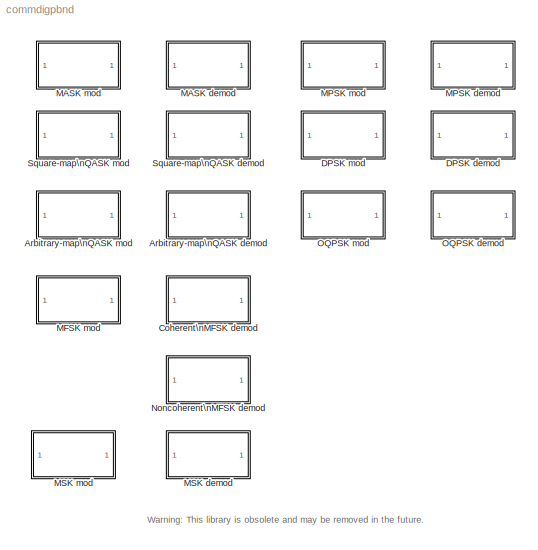
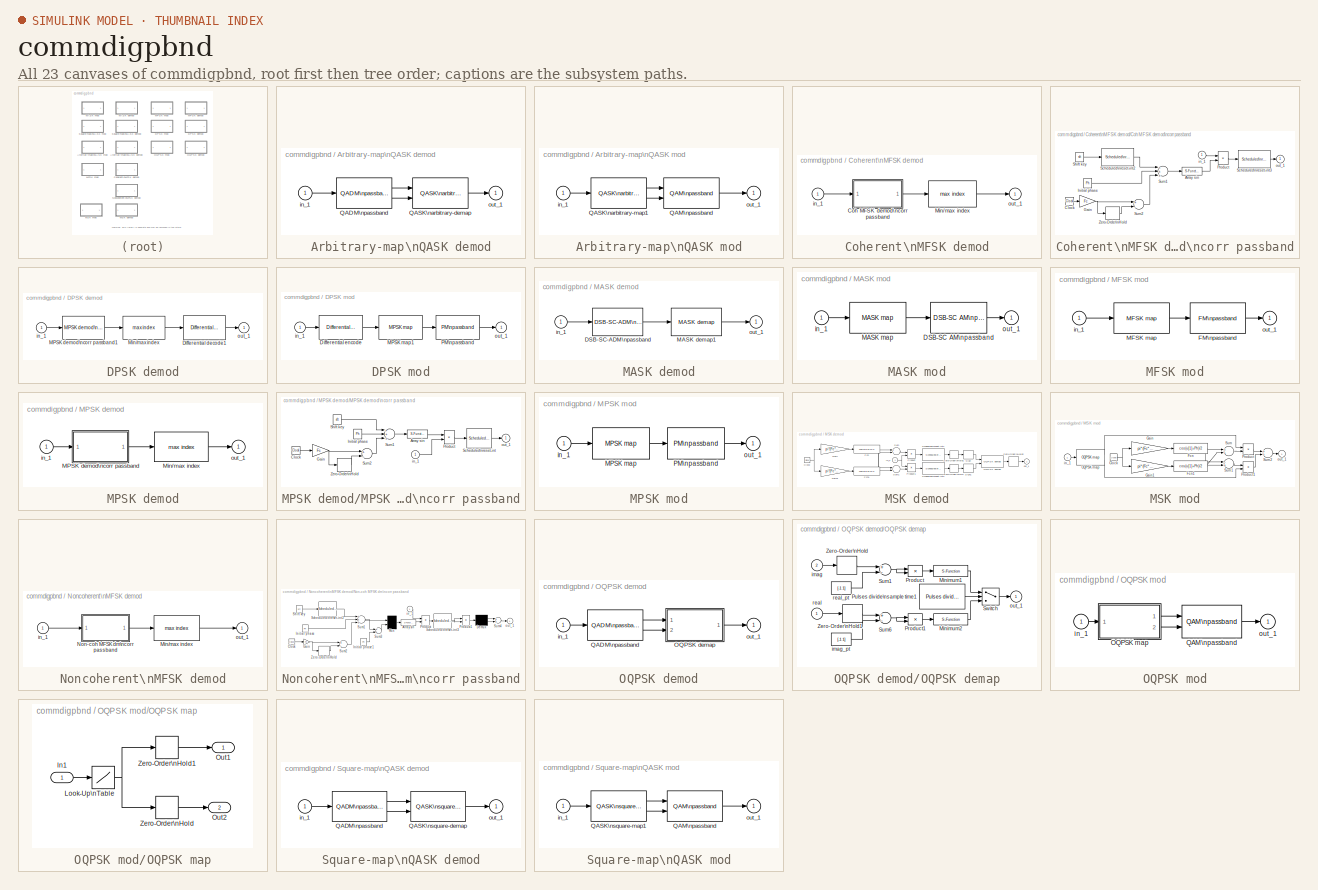
[diagram: thumbnail index - all 23 canvases of the model, root first then tree order]
MODEL commdigpbnd
KIND library
BLOCK [SubSystem] Arbitrary-map\nQASK demod
  MaskCallbackString = |||||
  MaskDescription = Demodulate a QASK modulated signal with user-defined arbitrary constellation.
  MaskDisplay = plot(0,0,100,100,[5+1.5*[[0:.8:10] [10 20] [20:.8:30]] 50 50 50 50+15*[0 1 1 2 2 3]],[85+10*[sin([0:.8:10]*pi*2/5) 0 0 sin([20:.8:30]*pi*2/5)] 85 99 75 85+8*[1 1 -1 -1 1 1]]);\ndisp('\\nPassband\\nA-QASK')
  MaskEnableString = on,on,on,on,on,on
  MaskHelp = This block demodulates a QASK modulated signal using user-defined arbitrary constellation. The arbitrary defined map is given in in-phase and quadrature component vector. The vector length of in-phase and quadrature components should have the same length. This block uses a default lowpass filter, which is [num,den]=butter(5,Fc*2*ts). Ungroup this block to define your own filter.
  MaskIconFrame = on
  MaskIconOpaque = on
  MaskIconRotate = none
  MaskIconUnits = autoscale
  MaskInitialization = [num,den]=butter(5,Fc*2*ts);\n
  MaskPromptString = Vector of in-phase component:|Vector of quadrature component:|Symbol interval (sec):|Carrier frequency (Hz):|Initial phase (rad):|Sample time (sec):
  MaskStyleString = edit,edit,edit,edit,edit,edit
  MaskToolTipString = on,on,on,on,on,on
  MaskTunableValueString = on,on,on,on,on,on
  MaskType = Passband A-map QASK demodulation
  MaskValueString = real(exp(j*[0:8-1]/8*pi*2))|imag(exp(j*[0:8-1]/8*pi*2))|0.1|100|0|0.001
  MaskVarAliasString = ,,,,,
  MaskVariables = y1=@1;y2=@2;td=@3;Fc=@4;Ph=@5;ts=@6;
  MaskVisibilityString = on,on,on,on,on,on
  Ports = [1, 1]
  TreatAsAtomicUnit = off
BLOCK [Reference] Arbitrary-map\nQASK demod/QADM\npassband  REF=commanapbnd/QADM\npassband
  Fc = Fc
  Ph = Ph
  Ports = [1, 2]
  SourceBlock = commanapbnd/QADM\npassband
  SourceType = Passband DSB-SC QADM
  den = den
  num = num
  ts = ts
BLOCK [Reference] Arbitrary-map\nQASK demod/QASK\narbitrary-demap  REF=commdigbbnd/A-map QASK\ndemod baseband/QASK\narbitrary-demap
  Ports = [2, 1]
  SourceBlock = commdigbbnd/A-map QASK\ndemod baseband/QASK\narbitrary-demap
  SourceType = QASK A-demap
  td = td
  y1 = y1
  y2 = y2
BLOCK [Inport] Arbitrary-map\nQASK demod/in_1
BLOCK [Outport] Arbitrary-map\nQASK demod/out_1
  InitialOutput = 0
BLOCK [SubSystem] Arbitrary-map\nQASK mod
  MaskCallbackString = |||||
  MaskDescription = Modulate the input digital signal using quadrature amplitude shift keying method with arbitrary constellation.
  MaskDisplay = plot(0,0,100,100,[5+15*[0 1 1 2 2 3] 50 50 50 50+1.5*[[0:.8:10] [10 20] [20:.8:30]]],[85+8*[1 1 -1 -1 1 1] 85 99 75 85+10*[sin([0:.8:10]*pi*2/5) 0 0 sin([20:.8:30]*pi*2/5)]]);\ndisp('\\nPassband\\nA-QASK')
  MaskEnableString = on,on,on,on,on,on
  MaskHelp = This block modulates a digital signal using QASK method with user-defined arbitrary constellation. The vector length of the in-phase and quadrature components vector should have the same length. The inputs are integers in the range [0, M-1], where M is the M-ary number. When the symbol interval is a two-element vector, the second element is the offset (default 0).
  MaskIconFrame = on
  MaskIconOpaque = on
  MaskIconRotate = none
  MaskIconUnits = autoscale
  MaskPromptString = Vector of in-phase component:|Vector of quadrature component:|Symbol interval (sec):|Carrier frequency (Hz):|Initial phase (rad):|Sample time (sec):
  MaskStyleString = edit,edit,edit,edit,edit,edit
  MaskToolTipString = on,on,on,on,on,on
  MaskTunableValueString = on,on,on,on,on,on
  MaskType = Passband A-map QASK modulation
  MaskValueString = real(exp(j*[0:8-1]/8*pi*2))|imag(exp(j*[0:8-1]/8*pi*2))|0.1|100|0|0.001
  MaskVarAliasString = ,,,,,
  MaskVariables = y1=@1;y2=@2;td=@3;Fc=@4;Ph=@5;ts=@6;
  MaskVisibilityString = on,on,on,on,on,on
  Ports = [1, 1]
  TreatAsAtomicUnit = off
BLOCK [Reference] Arbitrary-map\nQASK mod/QAM\npassband  REF=commanapbnd/QAM\npassband
  Fc = Fc
  Ph = Ph
  Ports = [2, 1]
  SourceBlock = commanapbnd/QAM\npassband
  SourceType = Passband DSB-SC QAM
  ts = ts
BLOCK [Reference] Arbitrary-map\nQASK mod/QASK\narbitrary-map1  REF=commdigbbnd/A-map QASK\nmod baseband/QASK\narbitrary-map
  Ports = [1, 2]
  SourceBlock = commdigbbnd/A-map QASK\nmod baseband/QASK\narbitrary-map
  SourceType = QASK A-map
  td = td
  y1 = y1
  y2 = y2
BLOCK [Inport] Arbitrary-map\nQASK mod/in_1
BLOCK [Outport] Arbitrary-map\nQASK mod/out_1
  InitialOutput = 0
BLOCK [SubSystem] Coherent\nMFSK demod
  MaskCallbackString = |||||
  MaskDescription = Demodulate a MFSK modulated signal using coherent demodulation method.
  MaskDisplay = plot(0,0,100,100,[5+1.5*[[0:.8:10] [10:1.6:20] [20:.8:30]] 50 50 50 50+15*[0 1 1 2 2 3]],[85+10*[sin([0:.8:10]*pi*2/5) sin([10:1.6:20]*pi/5) sin([20:.8:30]*pi*2/5)] 85 99 75 85+8*[1 1 -1 -1 1 1]]);\ndisp('\\nPassband\\nCohe MFSK')
  MaskEnableString = on,on,on,on,on,on
  MaskHelp = This block demodulates a MFSK modulated signal using coherent method. The coherence demodulation method is phase sensitive. The tone space is the frequency distance between two consecutive digit after the modulation. The inputs are integers in the range [0, M-1], where M is the M-ary number. When the symbol interval is a two-element vector, the second element is the offset (default 0).
  MaskIconFrame = on
  MaskIconOpaque = on
  MaskIconRotate = none
  MaskIconUnits = autoscale
  MaskPromptString = M-ary number (output digits in range [0, M-1]):|Tone space (Hz):|Symbol interval (sec):|Carrier frequency (Hz):|Initial phase (rad):|Sample time (sec):
  MaskStyleString = edit,edit,edit,edit,edit,edit
  MaskToolTipString = on,on,on,on,on,on
  MaskTunableValueString = on,on,on,on,on,on
  MaskType = Passband MFSK demodulation
  MaskValueString = 8|8/.1/5|0.1|100|0|0.001
  MaskVarAliasString = ,,,,,
  MaskVariables = M=@1;Ton=@2;td=@3;Fc=@4;Ph=@5;ts=@6;
  MaskVisibilityString = on,on,on,on,on,on
  Ports = [1, 1]
  TreatAsAtomicUnit = off
BLOCK [SubSystem] Coherent\nMFSK demod/Coh MFSK demod\ncorr passband
  MaskCallbackString = |||||
  MaskDescription = Compute MFSK correlation. Take MFSK modulated signal. Output a vector of correlation result.
  MaskDisplay = disp('Coh corr\\nMFSK dm')
  MaskEnableString = on,on,on,on,on,on
  MaskHelp = This block calculates the coherent correlation value of the input signal with a vector of sinusoidal signals. These sinusoidal signals have their frequency the same as that of FM modulated signal of possible resulting digits. The output is an M length vector. M is the M-ary number. The MFSK demodulation result is the index of the largest output, using the Min/max demap block. The computation is ph...<+14ch>
  MaskIconFrame = on
  MaskIconOpaque = on
  MaskIconRotate = none
  MaskIconUnits = autoscale
  MaskInitialization = pi2=2*pi;Fc=@4*pi2;sft=[0:N-1]*Ton*pi2;
  MaskPromptString = M-ary number (input in range [0, M-1]):|Tone space (Hz):|Symbol interval and offset (sec):|Carrier frequency (Hz):|Initial phase (rad):|Sample time (sec):
  MaskStyleString = edit,edit,edit,edit,edit,edit
  MaskToolTipString = on,on,on,on,on,on
  MaskTunableValueString = on,on,on,on,on,on
  MaskType = Passband coherent MFSK correlation
  MaskValueString = M|Ton|td|Fc|Ph|ts
  MaskVarAliasString = ,,,,,
  MaskVariables = N=@1;Ton=@2;td=@3;Ph=@5;ts=@6;
  MaskVisibilityString = on,on,on,on,on,on
  Ports = [1, 1]
  TreatAsAtomicUnit = off
BLOCK [S-Function] Coherent\nMFSK demod/Coh MFSK demod\ncorr passband/Array sin
  FunctionName = arysin
  Parameters = 'cos'
  Ports = [1, 1]
BLOCK [Clock] Coherent\nMFSK demod/Coh MFSK demod\ncorr passband/Clock
  Decimation = 10
BLOCK [Gain] Coherent\nMFSK demod/Coh MFSK demod\ncorr passband/Gain
  Gain = Fc
BLOCK [Constant] Coherent\nMFSK demod/Coh MFSK demod\ncorr passband/Initial phase
  Value = Ph
BLOCK [Product] Coherent\nMFSK demod/Coh MFSK demod\ncorr passband/Product
  Ports = [2, 1]
BLOCK [Reference] Coherent\nMFSK demod/Coh MFSK demod\ncorr passband/Scheduled\nreset-int2  REF=commutil/Scheduled\nreset-int
  Ports = [1, 1]
  SourceBlock = commutil/Scheduled\nreset-int
  SourceType = Scheduled reset integration
  limit = Inf
  td = td
  ts = ts
BLOCK [Reference] Coherent\nMFSK demod/Coh MFSK demod\ncorr passband/Scheduled\nreset-int3  REF=commutil/Scheduled\nreset-int
  Ports = [1, 1]
  SourceBlock = commutil/Scheduled\nreset-int
  SourceType = Scheduled reset integration
  limit = Inf
  td = td
  ts = ts
BLOCK [Constant] Coherent\nMFSK demod/Coh MFSK demod\ncorr passband/Shift key
  Value = sft
BLOCK [Sum] Coherent\nMFSK demod/Coh MFSK demod\ncorr passband/Sum1
  Inputs = +++
  Ports = [3, 1]
BLOCK [Sum] Coherent\nMFSK demod/Coh MFSK demod\ncorr passband/Sum2
  Inputs = +-
  Ports = [2, 1]
BLOCK [ZeroOrderHold] Coherent\nMFSK demod/Coh MFSK demod\ncorr passband/Zero-Order\nHold
  SampleTime = td
BLOCK [Inport] Coherent\nMFSK demod/Coh MFSK demod\ncorr passband/in_1
BLOCK [Outport] Coherent\nMFSK demod/Coh MFSK demod\ncorr passband/out_1
  InitialOutput = 0
BLOCK [Reference] Coherent\nMFSK demod/Min//max index  REF=commdigbbnd/Coh MFSK\ndemod baseband/Min//max index
  Ports = [1, 1]
  SourceBlock = commdigbbnd/Coh MFSK\ndemod baseband/Min//max index
  SourceType = Maximum/minimum index.
  mima = 'max'
  td = td
BLOCK [Inport] Coherent\nMFSK demod/in_1
BLOCK [Outport] Coherent\nMFSK demod/out_1
  InitialOutput = 0
BLOCK [SubSystem] DPSK demod
  MaskCallbackString = |||
  MaskDescription = Demodulate a DPSK modulated signal.
  MaskDisplay = plot(0,0,100,100,[5+1.5*[[0:.8:10] [10:1.6:20] [20:.8:30]] 50 50 50 50+15*[0 1 1 2 2 3]],[85+10*[sin([0:.8:10]*pi*2/5) sin([10:1.6:20]*pi/5) sin([20:.8:30]*pi*2/5)] 85 99 75 85+8*[1 1 -1 -1 1 1]]);\ndisp('\\nPassband\\nDPSK')
  MaskEnableString = on,on,on,on
  MaskHelp = This block demodulates a DPSK modulated signal using the digital MPSK Demod block and the Differential Decoder block. The input is a modulated analog signal and the output is a demodulated binary signal. Match the parameters to the ones used in the corresponding DPSK Mod block. The offset value in Symbol interval can be different.
  MaskIconFrame = on
  MaskIconOpaque = on
  MaskIconRotate = none
  MaskIconUnits = autoscale
  MaskPromptString = Symbol interval (sec):|Carrier frequency (Hz):|Initial phase (rad):|Sample time (sec):
  MaskStyleString = edit,edit,edit,edit
  MaskToolTipString = on,on,on,on
  MaskTunableValueString = on,on,on,on
  MaskType = Passband DPSK demodulation
  MaskValueString = 0.1|100|0|0.001
  MaskVarAliasString = ,,,
  MaskVariables = td=@1;Fc=@2;Ph=@3;ts=@4;
  MaskVisibilityString = on,on,on,on
  Ports = [1, 1]
  TreatAsAtomicUnit = off
BLOCK [Reference] DPSK demod/Differential decode1  REF=commutil/Differential decode
  Ports = [1, 1]
  SourceBlock = commutil/Differential decode
  SourceType = Binary differential decoder
  td = td
BLOCK [Reference] DPSK demod/MPSK demod\ncorr passband1  REF=commdigpbnd/MPSK demod/MPSK demod\ncorr passband
  MaskParam3 = Fc
  N = 2
  Ph = Ph
  Ports = [1, 1]
  SourceBlock = commdigpbnd/MPSK demod/MPSK demod\ncorr passband
  SourceType = Passband MPSK coherent MPSK correlation
  td = td
  ts = ts
BLOCK [Reference] DPSK demod/Min//max index  REF=commdigbbnd/Coh MFSK\ndemod baseband/Min//max index
  Ports = [1, 1]
  SourceBlock = commdigbbnd/Coh MFSK\ndemod baseband/Min//max index
  SourceType = Maximum/minimum index.
  mima = 'max'
  td = td
BLOCK [Inport] DPSK demod/in_1
BLOCK [Outport] DPSK demod/out_1
  InitialOutput = 0
BLOCK [SubSystem] DPSK mod
  MaskCallbackString = |||
  MaskDescription = Modulate the input signal using differential phase shift keying method.
  MaskDisplay = plot(0,0,100,100,[5+15*[0 1 1 2 2 3] 50 50 50 50+1.5*[[0:.8:10] [10:1.6:20] [20:.8:30]]],[85+8*[1 1 -1 -1 1 1] 85 99 75 85+10*[sin([0:.8:10]*pi*2/5) sin([10:1.6:20]*pi/5) sin([20:.8:30]*pi*2/5)]]);\ndisp('\\nPassband\\nDPSK')
  MaskEnableString = on,on,on,on
  MaskHelp = This block modulates a digital signal with a given carrier frequency using the DPSK method. The input to this block is a binary signal. When the symbol interval is a two-element vector, the second element is the offset (default is 0). The output is a modulated analog signal with a maximum amplitude equal to 1.
  MaskIconFrame = on
  MaskIconOpaque = on
  MaskIconRotate = none
  MaskIconUnits = autoscale
  MaskPromptString = Symbol interval (sec):|Carrier frequency (Hz):|Initial phase (rad):|Sample time (sec):
  MaskStyleString = edit,edit,edit,edit
  MaskToolTipString = on,on,on,on
  MaskTunableValueString = on,on,on,on
  MaskType = Passband DPSK modulation
  MaskValueString = 0.1|100|0|0.001
  MaskVarAliasString = ,,,
  MaskVariables = td=@1;Fc=@2;Ph=@3;ts=@4;
  MaskVisibilityString = on,on,on,on
  Ports = [1, 1]
  TreatAsAtomicUnit = off
BLOCK [Reference] DPSK mod/Differential encode  REF=commutil/Differential encode
  Ports = [1, 1]
  SourceBlock = commutil/Differential encode
  SourceType = Binary differential encoder
  td = td
BLOCK [Reference] DPSK mod/MPSK map1  REF=commdigbbnd/MPSK mod\nbaseband/MPSK map
  MaskParam1 = 2
  Ports = [1, 1]
  SourceBlock = commdigbbnd/MPSK mod\nbaseband/MPSK map
  SourceType = MPSK map
  td = td
BLOCK [Reference] DPSK mod/PM\npassband  REF=commanapbnd/PM\npassband
  Fc = Fc
  Kc = 1
  Ph = Ph
  Ports = [1, 1]
  SourceBlock = commanapbnd/PM\npassband
  SourceType = Passband PM
  td = td
BLOCK [Inport] DPSK mod/in_1
BLOCK [Outport] DPSK mod/out_1
  InitialOutput = 0
BLOCK [SubSystem] MASK demod
  MaskCallbackString = ||||
  MaskDescription = Demodulate a MASK modulated signal.
  MaskDisplay = plot(0,0,100,100,[5+1.5*[[0:.8:10] [10 20] [20:.8:30]] 50 50 50 50+15*[0 1 1 2 2 3]],[85+10*[sin([0:.8:10]*pi*2/5) 0 0 sin([20:.8:30]*pi*2/5)] 85 99 75 85+8*[1 1 -1 -1 1 1]]);\ndisp('\\nPassband\\nMASK');
  MaskEnableString = on,on,on,on,on
  MaskHelp = This block demodulates a MASK modulated signal. The output signals are digits in range [0, M-1]. When the symbol interval is a two element vector, the second element is the offset (default 0). A default lowpass filter is used in the demodulation, which is [num, den]=butter(5, Fc*2*ts). Ungroup this block to specify the numerator and denominator of the lowpass filter.
  MaskIconFrame = on
  MaskIconOpaque = on
  MaskIconRotate = none
  MaskIconUnits = autoscale
  MaskInitialization = [num,den]=butter(5,Fc*2*ts);\n\n
  MaskPromptString = M-ary number (output integer in range [0, M-1]):|Symbol interval (sec):|Carrier Frequency (Hz):|Initial phase (rad):|Sample time (sec):
  MaskStyleString = edit,edit,edit,edit,edit
  MaskToolTipString = on,on,on,on,on
  MaskTunableValueString = on,on,on,on,on
  MaskType = Passband MASK demodulation
  MaskValueString = 8|0.1|100|0|0.001
  MaskVarAliasString = ,,,,
  MaskVariables = M=@1;td=@2;Fc=@3;Ph=@4;ts=@5;
  MaskVisibilityString = on,on,on,on,on
  Ports = [1, 1]
  TreatAsAtomicUnit = off
BLOCK [Reference] MASK demod/DSB-SC-ADM\npassband  REF=commanapbnd/DSB-SC-ADM\npassband
  MaskParam1 = Fc
  MaskParam2 = num
  MaskParam3 = den
  MaskParam4 = Ph
  MaskParam5 = ts
  Ports = [1, 1]
  SourceBlock = commanapbnd/DSB-SC-ADM\npassband
  SourceType = Passband DSB-SC ADM
BLOCK [Reference] MASK demod/MASK demap1  REF=commdigbbnd/MASK demod\nbaseband/MASK demap
  M = M
  Ports = [1, 1]
  SourceBlock = commdigbbnd/MASK demod\nbaseband/MASK demap
  SourceType = MASK demap
  td = td
BLOCK [Inport] MASK demod/in_1
BLOCK [Outport] MASK demod/out_1
  InitialOutput = 0
BLOCK [SubSystem] MASK mod
  MaskCallbackString = ||||
  MaskDescription = Modulate the input digital signal using M-ary amplitude shift keying method.
  MaskDisplay = plot(0,0,100,100,[5+15*[0 1 1 2 2 3] 50 50 50 50+1.5*[[0:.8:10] [10 20] [20:.8:30]]],[85+8*[1 1 -1 -1 1 1] 85 99 75 85+10*[sin([0:.8:10]*pi*2/5) 0 0 sin([20:.8:30]*pi*2/5)]]);\ndisp('\\nPassband\\nMASK')
  MaskEnableString = on,on,on,on,on
  MaskHelp = This block modulates a digital signal using MASK method. The inputs are integers in the range [0, M-1], where M is the M-ary number. When the symbol interval is a two-element vector, the second element is the offset (default 0). The block keeps the input value at the offset time point for the entire interval.
  MaskIconFrame = on
  MaskIconOpaque = on
  MaskIconRotate = none
  MaskIconUnits = autoscale
  MaskPromptString = M-ary number (input integer in range [0, M-1]):|Input symbol interval (sec):|Carrier frequency (Hz):|Carrier initial phase (rad):|Sample time (sec):
  MaskStyleString = edit,edit,edit,edit,edit
  MaskToolTipString = on,on,on,on,on
  MaskTunableValueString = on,on,on,on,on
  MaskType = Passband MASK modulation
  MaskValueString = 8|0.1|100|0|0.001
  MaskVarAliasString = ,,,,
  MaskVariables = M=@1;td=@2;Fc=@3;Ph=@4;ts=@5;
  MaskVisibilityString = on,on,on,on,on
  Ports = [1, 1]
  TreatAsAtomicUnit = off
BLOCK [Reference] MASK mod/DSB-SC AM\npassband  REF=commanapbnd/DSB-SC AM\npassband
  MaskParam1 = Fc
  MaskParam2 = Ph
  MaskParam3 = ts
  Ports = [1, 1]
  SourceBlock = commanapbnd/DSB-SC AM\npassband
  SourceType = Passband DSB-SC AM
BLOCK [Reference] MASK mod/MASK map  REF=commdigbbnd/MASK mod\nbaseband/MASK map
  N = M
  Ports = [1, 1]
  SourceBlock = commdigbbnd/MASK mod\nbaseband/MASK map
  SourceType = MASK map
  td = td
BLOCK [Inport] MASK mod/in_1
BLOCK [Outport] MASK mod/out_1
  InitialOutput = 0
BLOCK [SubSystem] MFSK mod
  MaskCallbackString = ||||
  MaskDescription = Modulate the input digital signal using M-ary frequency shift keying method.
  MaskDisplay = plot(0,0,100,100,[5+15*[0 1 1 2 2 3] 50 50 50 50+1.5*[[0:.8:10] [10:1.6:20] [20:.8:30]]],[85+8*[1 1 -1 -1 1 1] 85 99 75 85+10*[sin([0:.8:10]*pi*2/5) sin([10:1.6:20]*pi/5) sin([20:.8:30]*pi*2/5)]]);\ndisp('\\nPassband\\nMFSK');
  MaskEnableString = on,on,on,on,on
  MaskHelp = This block modulates a digital signal using FSK method. The modulation resets the modulation phase to be the specified initial phase at the beginning of each digit. Tone space is the frequency distance between two consecutive digits after modulation. The output signal has its frequency in the range [Fc, Fc + Tone_space*Max_In_Value], where Fc is the carrier frequency.
  MaskIconFrame = on
  MaskIconOpaque = on
  MaskIconRotate = none
  MaskIconUnits = autoscale
  MaskPromptString = Tone space(Hz):|Symbol interval (sec):|Carrier frequency (Hz):|Initial phase (rad):|Sample time (sec):
  MaskStyleString = edit,edit,edit,edit,edit
  MaskToolTipString = on,on,on,on,on
  MaskTunableValueString = on,on,on,on,on
  MaskType = Passband FSK modulation
  MaskValueString = 8/.1/5|0.1|100|0|0.001
  MaskVarAliasString = ,,,,
  MaskVariables = Ton=@1;td=@2;Fc=@3;Ph=@4;ts=@5;
  MaskVisibilityString = on,on,on,on,on
  Ports = [1, 1]
  TreatAsAtomicUnit = off
BLOCK [Reference] MFSK mod/FM\npassband  REF=commanapbnd/FM\npassband
  Fc = Fc
  HzPerV = 1
  Ph = Ph
  Ports = [1, 1]
  SourceBlock = commanapbnd/FM\npassband
  SourceType = Passband FM
  td = td
  ts = ts
BLOCK [Reference] MFSK mod/MFSK map  REF=commdigbbnd/MFSK mod\nbaseband/MFSK map
  Ports = [1, 1]
  SourceBlock = commdigbbnd/MFSK mod\nbaseband/MFSK map
  SourceType = MFSK map
  Ton = Ton
  td = td
BLOCK [Inport] MFSK mod/in_1
BLOCK [Outport] MFSK mod/out_1
  InitialOutput = 0
BLOCK [SubSystem] MPSK demod
  MaskCallbackString = ||||
  MaskDescription = Demodulate a MPSK modulated signal using correlation method.
  MaskDisplay = plot(0,0,100,100,[5+1.5*[[0:.8:10] [10:1.6:20] [20:.8:30]] 50 50 50 50+15*[0 1 1 2 2 3]],[85+10*[sin([0:.8:10]*pi*2/5) sin([10:1.6:20]*pi/5) sin([20:.8:30]*pi*2/5)] 85 99 75 85+8*[1 1 -1 -1 1 1]]);\ndisp('\\nPassband\\nMPSK')
  MaskEnableString = on,on,on,on,on
  MaskHelp = This block demodulates a MPSK modulated signal using correlation method. The output signals are digits in range [0, M-1], where M is the M-ary number. When the symbol interval is a two-element vector, the second element is the offset (default 0).
  MaskIconFrame = on
  MaskIconOpaque = on
  MaskIconRotate = none
  MaskIconUnits = autoscale
  MaskPromptString = M-ary number (output integer in range [0, M-1]):|Symbol interval (sec):|Carrier frequency (Hz):|Initial phase (rad):|Sample time (sec):
  MaskStyleString = edit,edit,edit,edit,edit
  MaskToolTipString = on,on,on,on,on
  MaskTunableValueString = on,on,on,on,on
  MaskType = Passband MPSK demodulation
  MaskValueString = 8|0.1|100|0|0.001
  MaskVarAliasString = ,,,,
  MaskVariables = M=@1;td=@2;Fc=@3;Ph=@4;ts=@5;
  MaskVisibilityString = on,on,on,on,on
  Ports = [1, 1]
  TreatAsAtomicUnit = off
BLOCK [SubSystem] MPSK demod/MPSK demod\ncorr passband
  MaskCallbackString = ||||
  MaskDescription = Compute MPSK correlation. Take MPSK modulated signal. Output a vector of correlation result.
  MaskDisplay = disp('Corr MPSK\\ndemod')
  MaskEnableString = on,on,on,on,on
  MaskHelp = This block calculates the correlation value of the input signal with a vector of sinusoidal signals. These sinusoidal signals have their phase shift the same as that of PM modulated signal of possible resulting digits. The output is an M length vector. M is the M-ary number. The MPSK demodulation result is the index of the largest output, using the Min/max demap block. The computation is phase sen...<+7ch>
  MaskIconFrame = on
  MaskIconOpaque = on
  MaskIconRotate = none
  MaskIconUnits = autoscale
  MaskInitialization = pi2=2*pi;sft=[0:N-1]*pi2/N;Fc=@3*pi2;
  MaskPromptString = M-ary number (integer in range [0, M-1]):|Symbol interval and offset (sec):|Carrier frequency (Hz):|Initial phase (rad):|Sample time (sec):
  MaskStyleString = edit,edit,edit,edit,edit
  MaskToolTipString = on,on,on,on,on
  MaskTunableValueString = on,on,on,on,on
  MaskType = Passband MPSK coherent MPSK correlation
  MaskValueString = M|td|Fc|Ph|ts
  MaskVarAliasString = ,,,,
  MaskVariables = N=@1;td=@2;Ph=@4;ts=@5;
  MaskVisibilityString = on,on,on,on,on
  Ports = [1, 1]
  TreatAsAtomicUnit = off
BLOCK [S-Function] MPSK demod/MPSK demod\ncorr passband/Array sin
  FunctionName = arysin
  Parameters = 'cos'
  Ports = [1, 1]
BLOCK [Clock] MPSK demod/MPSK demod\ncorr passband/Clock
  Decimation = 10
BLOCK [Gain] MPSK demod/MPSK demod\ncorr passband/Gain
  Gain = Fc
BLOCK [Constant] MPSK demod/MPSK demod\ncorr passband/Initial phase
  Value = Ph
BLOCK [Product] MPSK demod/MPSK demod\ncorr passband/Product
  Ports = [2, 1]
BLOCK [Reference] MPSK demod/MPSK demod\ncorr passband/Scheduled\nreset-int  REF=commutil/Scheduled\nreset-int
  Ports = [1, 1]
  SourceBlock = commutil/Scheduled\nreset-int
  SourceType = Scheduled reset integration
  limit = Inf
  td = td
  ts = ts
BLOCK [Constant] MPSK demod/MPSK demod\ncorr passband/Shift key
  Value = sft
BLOCK [Sum] MPSK demod/MPSK demod\ncorr passband/Sum1
  Inputs = +++
  Ports = [3, 1]
BLOCK [Sum] MPSK demod/MPSK demod\ncorr passband/Sum2
  Inputs = +-
  Ports = [2, 1]
BLOCK [ZeroOrderHold] MPSK demod/MPSK demod\ncorr passband/Zero-Order\nHold
  SampleTime = td
BLOCK [Inport] MPSK demod/MPSK demod\ncorr passband/in_1
BLOCK [Outport] MPSK demod/MPSK demod\ncorr passband/out_1
  InitialOutput = 0
BLOCK [Reference] MPSK demod/Min//max index  REF=commdigbbnd/Coh MFSK\ndemod baseband/Min//max index
  Ports = [1, 1]
  SourceBlock = commdigbbnd/Coh MFSK\ndemod baseband/Min//max index
  SourceType = Maximum/minimum index.
  mima = 'max'
  td = td
BLOCK [Inport] MPSK demod/in_1
BLOCK [Outport] MPSK demod/out_1
  InitialOutput = 0
BLOCK [SubSystem] MPSK mod
  MaskCallbackString = ||||
  MaskDescription = Modulate the input signal using M-ary phase shift keying method.
  MaskDisplay = plot(0,0,100,100,[5+15*[0 1 1 2 2 3] 50 50 50 50+1.5*[[0:.8:10] [10:1.6:20] [20:.8:30]]],[85+8*[1 1 -1 -1 1 1] 85 99 75 85+10*[sin([0:.8:10]*pi*2/5) sin([10:1.6:20]*pi/5) sin([20:.8:30]*pi*2/5)]]);\ndisp('\\nPassband\\nMPSK')
  MaskEnableString = on,on,on,on,on
  MaskHelp = This block modulates a digital signal with a given carrier frequency using MPSK method. The inputs are integers in the range [0, M-1], where M is the M-ary number. When the symbol interval is a two element vector, the second element is the offset (default 0). The block keeps the input value at the offset time point for the entire interval.
  MaskIconFrame = on
  MaskIconOpaque = on
  MaskIconRotate = none
  MaskIconUnits = autoscale
  MaskPromptString = M-ary number (input integer in range [0, M-1]):|Symbol interval (sec):|Carrier frequency (Hz):|Initial phase (rad):|Sample time (sec):
  MaskStyleString = edit,edit,edit,edit,edit
  MaskToolTipString = on,on,on,on,on
  MaskTunableValueString = on,on,on,on,on
  MaskType = Passband MPSK modulation
  MaskValueString = 8|0.1|100|0|0.001
  MaskVarAliasString = ,,,,
  MaskVariables = M=@1;td=@2;Fc=@3;Ph=@4;ts=@5;
  MaskVisibilityString = on,on,on,on,on
  Ports = [1, 1]
  TreatAsAtomicUnit = off
BLOCK [Reference] MPSK mod/MPSK map  REF=commdigbbnd/MPSK mod\nbaseband/MPSK map
  MaskParam1 = M
  Ports = [1, 1]
  SourceBlock = commdigbbnd/MPSK mod\nbaseband/MPSK map
  SourceType = MPSK map
  td = td
BLOCK [Reference] MPSK mod/PM\npassband  REF=commanapbnd/PM\npassband
  Fc = Fc
  Kc = 1
  Ph = Ph
  Ports = [1, 1]
  SourceBlock = commanapbnd/PM\npassband
  SourceType = Passband PM
  td = td
BLOCK [Inport] MPSK mod/in_1
BLOCK [Outport] MPSK mod/out_1
  InitialOutput = 0
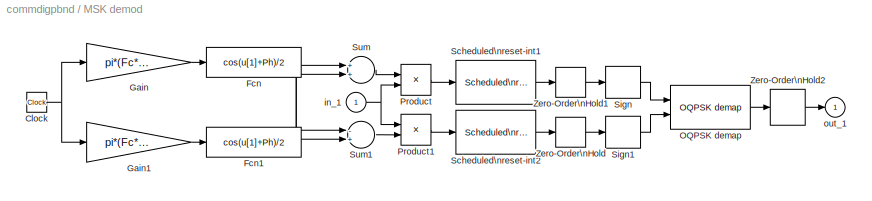
BLOCK [SubSystem] MSK demod
  MaskCallbackString = |||
  MaskDescription = Demodulate an MSK modulated signal.
  MaskDisplay = plot(0,0,100,100,[5+1.5*[[0:.8:10] [10 20] [20:.8:30]] 50 50 50 50+15*[0 1 1 2 2 3]],[85+10*[sin([0:.8:10]*pi*2/5) 0 0 sin([20:.8:30]*pi*2/5)] 85 99 75 85+8*[1 1 -1 -1 1 1]]);\ndisp('\\nPassband\\nMSK')
  MaskEnableString = on,on,on,on
  MaskHelp = This block demodulates an MSK modulated signal. It uses a matched filter to process the input signal and detect the in-phase and quadrature components of the signal. The filtered output is fed to an OQPSK Demap block resulting in a binary signal. Match the parameters to the ones used in the corresponding MSK Mod block. The offset value in Symbol interval can be different.
  MaskIconFrame = on
  MaskIconOpaque = on
  MaskIconRotate = none
  MaskIconUnits = autoscale
  MaskInitialization = T(1)=td(1);T2=2*T(1);if length(td)>1,T(2)=td(2); else, T(2)=0;end\n
  MaskPromptString = Symbol interval (sec):|Carrier frequency (Hz):|Initial phase (rad):|Sample time (sec):
  MaskStyleString = edit,edit,edit,edit
  MaskToolTipString = on,on,on,on
  MaskTunableValueString = on,on,on,on
  MaskType = Passband MSK demodulation
  MaskValueString = 0.1|100|0 |0.001
  MaskVarAliasString = ,,,
  MaskVariables = td=@1;Fc=@2;Ph=@3;ts=@4;
  MaskVisibilityString = on,on,on,on
  Ports = [1, 1]
  TreatAsAtomicUnit = off
BLOCK [Clock] MSK demod/Clock
  Decimation = 10
BLOCK [Fcn] MSK demod/Fcn
  Expr = cos(u[1]+Ph)/2
BLOCK [Fcn] MSK demod/Fcn1
  Expr = cos(u[1]+Ph)/2
BLOCK [Gain] MSK demod/Gain
  Gain = pi*(Fc*2+1/2/T(1))
BLOCK [Gain] MSK demod/Gain1
  Gain = pi*(Fc*2-1/2/T(1))
BLOCK [Reference] MSK demod/OQPSK demap  REF=commdigpbnd/OQPSK demod/OQPSK demap
  Ports = [2, 1]
  SourceBlock = commdigpbnd/OQPSK demod/OQPSK demap
  SourceType = OQPSK demap
  td = td
BLOCK [Product] MSK demod/Product
  Ports = [2, 1]
BLOCK [Product] MSK demod/Product1
  Ports = [2, 1]
BLOCK [Reference] MSK demod/Scheduled\nreset-int1  REF=commutil/Scheduled\nreset-int
  Ports = [1, 1]
  SourceBlock = commutil/Scheduled\nreset-int
  SourceType = Scheduled reset integration
  limit = Inf
  td = [2*T(1), T(1)+T(2)]
  ts = ts
BLOCK [Reference] MSK demod/Scheduled\nreset-int2  REF=commutil/Scheduled\nreset-int
  Ports = [1, 1]
  SourceBlock = commutil/Scheduled\nreset-int
  SourceType = Scheduled reset integration
  limit = Inf
  td = [2*T(1), T(2)]
  ts = ts
BLOCK [Signum] MSK demod/Sign
BLOCK [Signum] MSK demod/Sign1
BLOCK [Sum] MSK demod/Sum
  Ports = [2, 1]
BLOCK [Sum] MSK demod/Sum1
  Inputs = -+
  Ports = [2, 1]
BLOCK [ZeroOrderHold] MSK demod/Zero-Order\nHold
  SampleTime = [2*T(1), T(2)]
BLOCK [ZeroOrderHold] MSK demod/Zero-Order\nHold1
  SampleTime = [2*T(1), T(1)+T(2)]
BLOCK [ZeroOrderHold] MSK demod/Zero-Order\nHold2
  SampleTime = T
BLOCK [Inport] MSK demod/in_1
BLOCK [Outport] MSK demod/out_1
  InitialOutput = 0
BLOCK [SubSystem] MSK mod
  MaskCallbackString = |||
  MaskDescription = Modulate the input signal using minimum phase shift keying method.
  MaskDisplay = plot(0,0,100,100,[5+15*[0 1 1 2 2 3] 50 50 50 50+1.5*[[0:.8:10] [10:1.6:20] [20:.8:30]]],[85+8*[1 1 -1 -1 1 1] 85 99 75 85+10*[sin([0:.8:10]*pi*2/5) sin([10:1.6:20]*pi/5) sin([20:.8:30]*pi*2/5)]]);\ndisp('\\nPassband\\nMSK')
  MaskEnableString = on,on,on,on
  MaskHelp = This block modulates a digital signal with a given carrier frequency using the MSK method. It uses the OQPSK Map block to map the binary input signal to the in-phase and quadrature components. When the symbol interval is a two-element vector, the second element is the offset (default is 0). The output is a modulated analog signal with a maximum amplitude equal to 1.
  MaskIconFrame = on
  MaskIconOpaque = on
  MaskIconRotate = none
  MaskIconUnits = autoscale
  MaskPromptString = Symbol interval (sec):|Carrier frequency (Hz):|Initial phase (rad):|Sample time (sec):
  MaskStyleString = edit,edit,edit,edit
  MaskToolTipString = on,on,on,on
  MaskTunableValueString = on,on,on,on
  MaskType = Passband MSK modulation
  MaskValueString = 0.1|100|0|0.001
  MaskVarAliasString = ,,,
  MaskVariables = td=@1;Fc=@2;Ph=@3;ts=@4;
  MaskVisibilityString = on,on,on,on
  Ports = [1, 1]
  TreatAsAtomicUnit = off
BLOCK [Clock] MSK mod/Clock
  Decimation = 10
BLOCK [Fcn] MSK mod/Fcn
  Expr = cos(u[1]+Ph)/2
BLOCK [Fcn] MSK mod/Fcn1
  Expr = cos(u[1]+Ph)/2
BLOCK [Gain] MSK mod/Gain
  Gain = pi*(Fc*2+1/2/td(1))
BLOCK [Gain] MSK mod/Gain1
  Gain = pi*(Fc*2-1/2/td(1))
BLOCK [Reference] MSK mod/OQPSK map  REF=commdigpbnd/OQPSK mod/OQPSK map
  Ports = [1, 2]
  SourceBlock = commdigpbnd/OQPSK mod/OQPSK map
  SourceType = OQPSK map
  T = td
BLOCK [Product] MSK mod/Product
  Ports = [2, 1]
BLOCK [Product] MSK mod/Product1
  Ports = [2, 1]
BLOCK [Sum] MSK mod/Sum
  Ports = [2, 1]
BLOCK [Sum] MSK mod/Sum1
  Inputs = -+
  Ports = [2, 1]
BLOCK [Sum] MSK mod/Sum2
  Ports = [2, 1]
BLOCK [Inport] MSK mod/in_1
BLOCK [Outport] MSK mod/out_1
  InitialOutput = 0
BLOCK [SubSystem] Noncoherent\nMFSK demod
  MaskCallbackString = |||||
  MaskDescription = Demodulate a MFSK modulated signal using noncoherent method.
  MaskDisplay = plot(0,0,100,100,[5+1.5*[[0:.8:10] [10:1.6:20] [20:.8:30]] 50 50 50 50+15*[0 1 1 2 2 3]],[85+10*[sin([0:.8:10]*pi*2/5) sin([10:1.6:20]*pi/5) sin([20:.8:30]*pi*2/5)] 85 99 75 85+8*[1 1 -1 -1 1 1]]);\ndisp('\\nPassband\\nNonc MFSK')
  MaskEnableString = on,on,on,on,on,on
  MaskHelp = This block demodulates a MFSK modulated signal using noncoherent method. The tone space is the frequency distance between two consecutive after the modulation. The inputs are integers in the range [0, M-1], where M is the M-ary number. When the symbol interval is a two-element vector, the second element is the offset (default 0).
  MaskIconFrame = on
  MaskIconOpaque = on
  MaskIconRotate = none
  MaskIconUnits = autoscale
  MaskPromptString = M-ary number (output digits in range [0, M-1]):|Tone space (Hz):|Symbol interval (sec):|Carrier frequency (Hz):|Initial phase (rad):|Sample time (sec):
  MaskStyleString = edit,edit,edit,edit,edit,edit
  MaskToolTipString = on,on,on,on,on,on
  MaskTunableValueString = on,on,on,on,on,on
  MaskType = Passband MPSK demodulation
  MaskValueString = 8|8/.1/5|0.1|100|pi/6|0.001
  MaskVarAliasString = ,,,,,
  MaskVariables = M=@1;Ton=@2;td=@3;Fc=@4;Ph=@5;ts=@6;
  MaskVisibilityString = on,on,on,on,on,on
  Ports = [1, 1]
  TreatAsAtomicUnit = off
BLOCK [Reference] Noncoherent\nMFSK demod/Min//max index  REF=commdigbbnd/Coh MFSK\ndemod baseband/Min//max index
  Ports = [1, 1]
  SourceBlock = commdigbbnd/Coh MFSK\ndemod baseband/Min//max index
  SourceType = Maximum/minimum index.
  mima = 'max'
  td = td
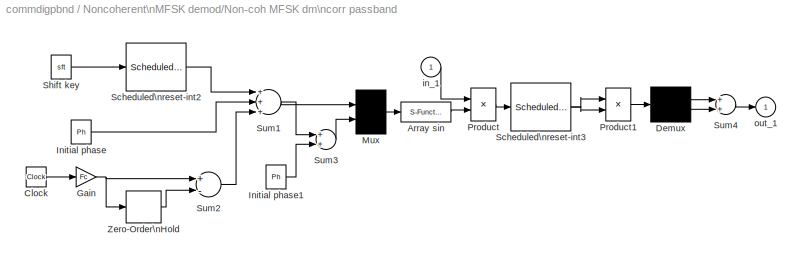
BLOCK [SubSystem] Noncoherent\nMFSK demod/Non-coh MFSK dm\ncorr passband
  MaskCallbackString = |||||
  MaskDescription = Compute MFSK correlation. Take MFSK modulated signal. Output a vector of correlation result.
  MaskDisplay = disp('Noncoh corr\\nMFSK dm')
  MaskEnableString = on,on,on,on,on,on
  MaskHelp = This block calculates the noncoherent correlation value of the input signal with a vector of sinusoidal signals. These sinusoidal signals have their frequency the same as that of FM modulated signal of possible resulting digits. The output is an M length vector. M is the M-ary number. The MFSK demodulation result is the index of the largest output, using the Min/max demap block.
  MaskIconFrame = on
  MaskIconOpaque = on
  MaskIconRotate = none
  MaskIconUnits = autoscale
  MaskInitialization = pi2=2*pi;Fc=@4*pi2;sft=[0:N-1]*Ton*pi2;
  MaskPromptString = M-ary number (input in range [0, M-1]):|Tone space (Hz):|Symbol interval and offset (sec):|Carrier frequency (Hz):|Initial phase (rad):|Sample time (sec):
  MaskStyleString = edit,edit,edit,edit,edit,edit
  MaskToolTipString = on,on,on,on,on,on
  MaskTunableValueString = on,on,on,on,on,on
  MaskType = Passband non-coherent MFSK correlation
  MaskValueString = M|Ton|td|Fc|Ph|ts
  MaskVarAliasString = ,,,,,
  MaskVariables = N=@1;Ton=@2;td=@3;Ph=@5;ts=@6;
  MaskVisibilityString = on,on,on,on,on,on
  Ports = [1, 1]
  TreatAsAtomicUnit = off
BLOCK [S-Function] Noncoherent\nMFSK demod/Non-coh MFSK dm\ncorr passband/Array sin
  FunctionName = arysin
  Parameters = 'cos'
  Ports = [1, 1]
BLOCK [Clock] Noncoherent\nMFSK demod/Non-coh MFSK dm\ncorr passband/Clock
  Decimation = 10
BLOCK [Demux] Noncoherent\nMFSK demod/Non-coh MFSK dm\ncorr passband/Demux
  Outputs = [N N]
  Ports = [1, 2]
BLOCK [Gain] Noncoherent\nMFSK demod/Non-coh MFSK dm\ncorr passband/Gain
  Gain = Fc
BLOCK [Constant] Noncoherent\nMFSK demod/Non-coh MFSK dm\ncorr passband/Initial phase
  Value = Ph
BLOCK [Constant] Noncoherent\nMFSK demod/Non-coh MFSK dm\ncorr passband/Initial phase1
  Value = Ph
BLOCK [Mux] Noncoherent\nMFSK demod/Non-coh MFSK dm\ncorr passband/Mux
  Inputs = [N N]
  Ports = [2, 1]
BLOCK [Product] Noncoherent\nMFSK demod/Non-coh MFSK dm\ncorr passband/Product
  Ports = [2, 1]
BLOCK [Product] Noncoherent\nMFSK demod/Non-coh MFSK dm\ncorr passband/Product1
  Ports = [2, 1]
BLOCK [Reference] Noncoherent\nMFSK demod/Non-coh MFSK dm\ncorr passband/Scheduled\nreset-int2  REF=commutil/Scheduled\nreset-int
  Ports = [1, 1]
  SourceBlock = commutil/Scheduled\nreset-int
  SourceType = Scheduled reset integration
  limit = Inf
  td = td
  ts = ts
BLOCK [Reference] Noncoherent\nMFSK demod/Non-coh MFSK dm\ncorr passband/Scheduled\nreset-int3  REF=commutil/Scheduled\nreset-int
  Ports = [1, 1]
  SourceBlock = commutil/Scheduled\nreset-int
  SourceType = Scheduled reset integration
  limit = Inf
  td = td
  ts = ts
BLOCK [Constant] Noncoherent\nMFSK demod/Non-coh MFSK dm\ncorr passband/Shift key
  Value = sft
BLOCK [Sum] Noncoherent\nMFSK demod/Non-coh MFSK dm\ncorr passband/Sum1
  Inputs = +++
  Ports = [3, 1]
BLOCK [Sum] Noncoherent\nMFSK demod/Non-coh MFSK dm\ncorr passband/Sum2
  Inputs = +-
  Ports = [2, 1]
BLOCK [Sum] Noncoherent\nMFSK demod/Non-coh MFSK dm\ncorr passband/Sum3
  Ports = [2, 1]
BLOCK [Sum] Noncoherent\nMFSK demod/Non-coh MFSK dm\ncorr passband/Sum4
  Ports = [2, 1]
BLOCK [ZeroOrderHold] Noncoherent\nMFSK demod/Non-coh MFSK dm\ncorr passband/Zero-Order\nHold
  SampleTime = td
BLOCK [Inport] Noncoherent\nMFSK demod/Non-coh MFSK dm\ncorr passband/in_1
BLOCK [Outport] Noncoherent\nMFSK demod/Non-coh MFSK dm\ncorr passband/out_1
  InitialOutput = 0
BLOCK [Inport] Noncoherent\nMFSK demod/in_1
BLOCK [Outport] Noncoherent\nMFSK demod/out_1
  InitialOutput = 0
BLOCK [SubSystem] OQPSK demod
  MaskCallbackString = |||
  MaskDescription = Demodulate an OQPSK modulated signal.
  MaskDisplay = plot(0,0,100,100,[5+1.5*[[0:.8:10] [10 20] [20:.8:30]] 50 50 50 50+15*[0 1 1 2 2 3]],[85+10*[sin([0:.8:10]*pi*2/5) 0 0 sin([20:.8:30]*pi*2/5)] 85 99 75 85+8*[1 1 -1 -1 1 1]]);\ndisp('\\nPassband\\nOQPSK')
  MaskEnableString = on,on,on,on
  MaskHelp = This block demodulates an OQPSK modulated signal. The inputs are the in-phase and quadrature components of the QAM demodulated (QADM) signal. The output is a scalar binary signal with sample time T.
  MaskIconFrame = on
  MaskIconOpaque = on
  MaskIconRotate = none
  MaskIconUnits = autoscale
  MaskInitialization = [num,den]=butter(5,Fc*2*ts);NIR=4;AIR=1/sqrt(2);PIR=pi/4;\n
  MaskPromptString = Symbol interval (sec):|Carrier frequency (Hz):|Initial phase (rad):|Sample time (sec):
  MaskStyleString = edit,edit,edit,edit
  MaskToolTipString = on,on,on,on
  MaskTunableValueString = on,on,on,on
  MaskType = Passband OQPSK demodulation
  MaskValueString = 0.1|100|0|0.001
  MaskVarAliasString = ,,,
  MaskVariables = td=@1;Fc=@2;Ph=@3;ts=@4;
  MaskVisibilityString = on,on,on,on
  Ports = [1, 1]
  TreatAsAtomicUnit = off
BLOCK [SubSystem] OQPSK demod/OQPSK demap
  MaskDescription = Reverse the OQPSK map. Input in-phase and quadrature components from the two inputs and output the demapped signal.
  MaskDisplay = disp('OQPSK\\ndemap')
  MaskEnableString = on
  MaskHelp = This block demaps an OQPSK mapped signal. You can place this block after a QAM demodulation (QADM) block. The two inputs are the in-phase and quadrature elements of the QAM demodulated  (QADM)signal. The output is a binary signal with sample time T.
  MaskIconFrame = on
  MaskIconOpaque = on
  MaskIconRotate = none
  MaskIconUnits = autoscale
  MaskInitialization = N=4;A=1/sqrt(2);P=pi/4;y1=apkconst(N,A,P);y2=imag(y1);y1=real(y1);T=td(1);T2=2*T;if length(td)>1,Offset=td(2); else, Offset=0;end
  MaskPromptString = Symbol interval and offset (sec):
  MaskStyleString = edit
  MaskToolTipString = on
  MaskTunableValueString = on
  MaskType = OQPSK demap
  MaskValueString = td
  MaskVariables = td=@1;
  MaskVisibilityString = on
  Ports = [2, 1]
  TreatAsAtomicUnit = off
BLOCK [S-Function] OQPSK demod/OQPSK demap/Minimum1
  FunctionName = arymimai
  Parameters = 'min'
  Ports = [1, 1]
BLOCK [S-Function] OQPSK demod/OQPSK demap/Minimum2
  FunctionName = arymimai
  Parameters = 'min'
  Ports = [1, 1]
BLOCK [Product] OQPSK demod/OQPSK demap/Product
  Ports = [2, 1]
BLOCK [Product] OQPSK demod/OQPSK demap/Product1
  Ports = [2, 1]
BLOCK [Reference] OQPSK demod/OQPSK demap/Pulses divide\nsample time1  REF=commsource/Pulses divide\nsample time
  Ports = [0, 1]
  SourceBlock = commsource/Pulses divide\nsample time
  SourceType = Pulse generator
  offset = Offset
  out_divid = 1
  samp_time = T2
BLOCK [Sum] OQPSK demod/OQPSK demap/Sum1
  Inputs = +-
  Ports = [2, 1]
BLOCK [Sum] OQPSK demod/OQPSK demap/Sum6
  Inputs = +-
  Ports = [2, 1]
BLOCK [Switch] OQPSK demod/OQPSK demap/Switch
  Threshold = .5
BLOCK [ZeroOrderHold] OQPSK demod/OQPSK demap/Zero-Order\nHold
  SampleTime = [T2, Offset]
BLOCK [ZeroOrderHold] OQPSK demod/OQPSK demap/Zero-Order\nHold1
  SampleTime = [T2, Offset+T]
BLOCK [Inport] OQPSK demod/OQPSK demap/imag
  Port = 2
BLOCK [Constant] OQPSK demod/OQPSK demap/imag_pt
  Value = [-1 1]
BLOCK [Outport] OQPSK demod/OQPSK demap/out_1
  InitialOutput = 0
BLOCK [Inport] OQPSK demod/OQPSK demap/real
BLOCK [Constant] OQPSK demod/OQPSK demap/real_pt
  Value = [-1 1]
BLOCK [Reference] OQPSK demod/QADM\npassband  REF=commanapbnd/QADM\npassband
  Fc = Fc
  Ph = Ph
  Ports = [1, 2]
  SourceBlock = commanapbnd/QADM\npassband
  SourceType = Passband DSB-SC QADM
  den = den
  num = num
  ts = ts
BLOCK [Inport] OQPSK demod/in_1
BLOCK [Outport] OQPSK demod/out_1
  InitialOutput = 0
BLOCK [SubSystem] OQPSK mod
  MaskCallbackString = |||
  MaskDescription = Modulate the input signal using offset quadrature phase shift keying method.
  MaskDisplay = plot(0,0,100,100,[5+15*[0 1 1 2 2 3] 50 50 50 50+1.5*[[0:.8:10] [10:1.6:20] [20:.8:30]]],[85+8*[1 1 -1 -1 1 1] 85 99 75 85+10*[sin([0:.8:10]*pi*2/5) sin([10:1.6:20]*pi/5) sin([20:.8:30]*pi*2/5)]]);\ndisp('\\nPassband\\nOQPSK')
  MaskEnableString = on,on,on,on
  MaskHelp = This block modulates a digital signal with a given carrier frequency using the OQPSK method. The input to this block is a binary signal. When the symbol interval is a two-element vector, the second element is the offset (default is 0). The block uses the OQPSK Map block before feeding the signal to the QAM block. The output is a modulated analog signal with maximum amplitude equal to 1.
  MaskIconFrame = on
  MaskIconOpaque = on
  MaskIconRotate = none
  MaskIconUnits = autoscale
  MaskPromptString = Symbol interval (sec):|Carrier frequency (Hz):|Initial phase (rad):|Sample time (sec):
  MaskStyleString = edit,edit,edit,edit
  MaskToolTipString = on,on,on,on
  MaskTunableValueString = on,on,on,on
  MaskType = Passband OQPSK modulation
  MaskValueString = 0.1|100|0|0.001
  MaskVarAliasString = ,,,
  MaskVariables = td=@1;Fc=@2;Ph=@3;ts=@4;
  MaskVisibilityString = on,on,on,on
  Ports = [1, 1]
  TreatAsAtomicUnit = off
BLOCK [SubSystem] OQPSK mod/OQPSK map
  MaskDescription = The input binary signal, with sample time T, is mapped into the 1/-1 value in-phase component with sample time 2T and offset 0, and into the quadrature component with sample time 2T and offset T.
  MaskDisplay = disp('OQPSK\\nmap')
  MaskEnableString = on
  MaskHelp = This block maps the scalar binary input signal to the offset QPSK encoded signal. The value of the output of this block is either 1 or -1. The first output is the in-phase component. The second output of this block is the quadrature component. Note the difference between QPSK and OQPSK. This block does not introduce any delay.
  MaskIconFrame = on
  MaskIconOpaque = on
  MaskIconRotate = none
  MaskIconUnits = autoscale
  MaskInitialization = if length(T)<2, T=[T, 0]; end;
  MaskPromptString = Symbol interval (sec):
  MaskStyleString = edit
  MaskToolTipString = on
  MaskTunableValueString = on
  MaskType = OQPSK map
  MaskValueString = td
  MaskVariables = T=@1;
  MaskVisibilityString = on
  Ports = [1, 2]
  TreatAsAtomicUnit = off
BLOCK [Inport] OQPSK mod/OQPSK map/In1
BLOCK [Lookup] OQPSK mod/OQPSK map/Look-Up\nTable
  InputValues = [0 .5 .5 1]
  OutputValues = [-1 -1 1 1]
BLOCK [Outport] OQPSK mod/OQPSK map/Out1
  InitialOutput = 0
BLOCK [Outport] OQPSK mod/OQPSK map/Out2
  InitialOutput = 0
  Port = 2
BLOCK [ZeroOrderHold] OQPSK mod/OQPSK map/Zero-Order\nHold
  SampleTime = [2*T(1), T(2)]
BLOCK [ZeroOrderHold] OQPSK mod/OQPSK map/Zero-Order\nHold1
  SampleTime = [2*T(1), T(1)+T(2)]
BLOCK [Reference] OQPSK mod/QAM\npassband  REF=commanapbnd/QAM\npassband
  Fc = Fc
  Ph = Ph
  Ports = [2, 1]
  SourceBlock = commanapbnd/QAM\npassband
  SourceType = Passband DSB-SC QAM
  ts = ts
BLOCK [Inport] OQPSK mod/in_1
BLOCK [Outport] OQPSK mod/out_1
  InitialOutput = 0
BLOCK [SubSystem] Square-map\nQASK demod
  MaskCallbackString = ||||
  MaskDescription = Demodulate a QASK modulated signal using square constellation.
  MaskDisplay = plot(0,0,100,100,[5+1.5*[[0:.8:10] [10 20] [20:.8:30]] 50 50 50 50+15*[0 1 1 2 2 3]],[85+10*[sin([0:.8:10]*pi*2/5) 0 0 sin([20:.8:30]*pi*2/5)] 85 99 75 85+8*[1 1 -1 -1 1 1]]);\ndisp('\\nPassband\\nS-QASK')
  MaskEnableString = on,on,on,on,on
  MaskHelp = This block demodulates a MQASK modulated signal. The output signals are digits in the range [0, M-1]. When the symbol interval is a two-element vector, the second element is the offset (default 0). A default lowpass filter is used in the demodulation, which is [num, den]=butter(5, Fc*2*ts). Ungroup this block to specify the numerator and denominator of the lowpass filter.
  MaskIconFrame = on
  MaskIconOpaque = on
  MaskIconRotate = none
  MaskIconUnits = autoscale
  MaskInitialization = [num,den]=butter(5,Fc*2*ts);\n
  MaskPromptString = M-ary number (output integer in range [0 M-1]):|Symbol interval (sec):|Carrier Frequency (Hz):|Initial phase (rad):|Sample time (sec):
  MaskStyleString = edit,edit,edit,edit,edit
  MaskToolTipString = on,on,on,on,on
  MaskTunableValueString = on,on,on,on,on
  MaskType = Passband S-QASK demodulation
  MaskValueString = 8|0.1|100|0|0.001
  MaskVarAliasString = ,,,,
  MaskVariables = M=@1;td=@2;Fc=@3;Ph=@4;ts=@5;
  MaskVisibilityString = on,on,on,on,on
  Ports = [1, 1]
  TreatAsAtomicUnit = off
BLOCK [Reference] Square-map\nQASK demod/QADM\npassband  REF=commanapbnd/QADM\npassband
  Fc = Fc
  Ph = Ph
  Ports = [1, 2]
  SourceBlock = commanapbnd/QADM\npassband
  SourceType = Passband DSB-SC QADM
  den = den
  num = num
  ts = ts
BLOCK [Reference] Square-map\nQASK demod/QASK\nsquare-demap  REF=commdigbbnd/S-map QASK\ndemod baseband/QASK\nsquare-demap
  N = M
  Ports = [2, 1]
  SourceBlock = commdigbbnd/S-map QASK\ndemod baseband/QASK\nsquare-demap
  SourceType = QASK S-demap
  td = td
BLOCK [Inport] Square-map\nQASK demod/in_1
BLOCK [Outport] Square-map\nQASK demod/out_1
  InitialOutput = 0
BLOCK [SubSystem] Square-map\nQASK mod
  MaskCallbackString = ||||
  MaskDescription = Modulate the input signal using quadrature amplitude shift keying modulation method with square constellation.
  MaskDisplay = plot(0,0,100,100,[5+15*[0 1 1 2 2 3] 50 50 50 50+1.5*[[0:.8:10] [10 20] [20:.8:30]]],[85+8*[1 1 -1 -1 1 1] 85 99 75 85+10*[sin([0:.8:10]*pi*2/5) 0 0 sin([20:.8:30]*pi*2/5)]]);\ndisp('\\nPassband\\nS-QASK')
  MaskEnableString = on,on,on,on,on
  MaskHelp = This block modulates a digital signal using QASK method with square constellation. The inputs are integers in the range [0, M-1], where M is the M-ary number, which is M=2^K. K is an integer. When the symbol interval is a two element vector, the second element is the offset (default 0).
  MaskIconFrame = on
  MaskIconOpaque = on
  MaskIconRotate = none
  MaskIconUnits = autoscale
  MaskPromptString = M-ary number (input digits in range [0, M-1]):|Symbol interval (sec):|Carrier frequency (Hz):|Initial phase (rad):|Sample time (sec):
  MaskStyleString = edit,edit,edit,edit,edit
  MaskToolTipString = on,on,on,on,on
  MaskTunableValueString = on,on,on,on,on
  MaskType = Passband S-QASK modulation
  MaskValueString = 8|0.1|100|0|0.001
  MaskVarAliasString = ,,,,
  MaskVariables = M=@1;td=@2;Fc=@3;Ph=@4;ts=@5;
  MaskVisibilityString = on,on,on,on,on
  Ports = [1, 1]
  TreatAsAtomicUnit = off
BLOCK [Reference] Square-map\nQASK mod/QAM\npassband  REF=commanapbnd/QAM\npassband
  Fc = Fc
  Ph = Ph
  Ports = [2, 1]
  SourceBlock = commanapbnd/QAM\npassband
  SourceType = Passband DSB-SC QAM
  ts = ts
BLOCK [Reference] Square-map\nQASK mod/QASK\nsquare-map1  REF=commdigbbnd/S-map QASK\nmod baseband/QASK\nsquare-map
  N = M
  Ports = [1, 2]
  SourceBlock = commdigbbnd/S-map QASK\nmod baseband/QASK\nsquare-map
  SourceType = QASK S-map
  td = td
BLOCK [Inport] Square-map\nQASK mod/in_1
BLOCK [Outport] Square-map\nQASK mod/out_1
  InitialOutput = 0
ANNOTATION (root): Warning: This library is obsolete and may be removed in the future.
LINE Arbitrary-map\nQASK demod/QADM\npassband:1 -> Arbitrary-map\nQASK demod/QASK\narbitrary-demap:1
LINE Arbitrary-map\nQASK demod/QADM\npassband:2 -> Arbitrary-map\nQASK demod/QASK\narbitrary-demap:2
LINE Arbitrary-map\nQASK demod/QASK\narbitrary-demap:1 -> Arbitrary-map\nQASK demod/out_1:1
LINE Arbitrary-map\nQASK demod/in_1:1 -> Arbitrary-map\nQASK demod/QADM\npassband:1
LINE Arbitrary-map\nQASK mod/QAM\npassband:1 -> Arbitrary-map\nQASK mod/out_1:1
LINE Arbitrary-map\nQASK mod/QASK\narbitrary-map1:1 -> Arbitrary-map\nQASK mod/QAM\npassband:1
LINE Arbitrary-map\nQASK mod/QASK\narbitrary-map1:2 -> Arbitrary-map\nQASK mod/QAM\npassband:2
LINE Arbitrary-map\nQASK mod/in_1:1 -> Arbitrary-map\nQASK mod/QASK\narbitrary-map1:1
LINE Coherent\nMFSK demod/Coh MFSK demod\ncorr passband/Array sin:1 -> Coherent\nMFSK demod/Coh MFSK demod\ncorr passband/Product:2
LINE Coherent\nMFSK demod/Coh MFSK demod\ncorr passband/Clock:1 -> Coherent\nMFSK demod/Coh MFSK demod\ncorr passband/Gain:1
NET Coherent\nMFSK demod/Coh MFSK demod\ncorr passband/Gain:1 -> Coherent\nMFSK demod/Coh MFSK demod\ncorr passband/Sum2:1, Coherent\nMFSK demod/Coh MFSK demod\ncorr passband/Zero-Order\nHold:1
LINE Coherent\nMFSK demod/Coh MFSK demod\ncorr passband/Initial phase:1 -> Coherent\nMFSK demod/Coh MFSK demod\ncorr passband/Sum1:2
LINE Coherent\nMFSK demod/Coh MFSK demod\ncorr passband/Product:1 -> Coherent\nMFSK demod/Coh MFSK demod\ncorr passband/Scheduled\nreset-int3:1
LINE Coherent\nMFSK demod/Coh MFSK demod\ncorr passband/Scheduled\nreset-int2:1 -> Coherent\nMFSK demod/Coh MFSK demod\ncorr passband/Sum1:1
LINE Coherent\nMFSK demod/Coh MFSK demod\ncorr passband/Scheduled\nreset-int3:1 -> Coherent\nMFSK demod/Coh MFSK demod\ncorr passband/out_1:1
LINE Coherent\nMFSK demod/Coh MFSK demod\ncorr passband/Shift key:1 -> Coherent\nMFSK demod/Coh MFSK demod\ncorr passband/Scheduled\nreset-int2:1
LINE Coherent\nMFSK demod/Coh MFSK demod\ncorr passband/Sum1:1 -> Coherent\nMFSK demod/Coh MFSK demod\ncorr passband/Array sin:1
LINE Coherent\nMFSK demod/Coh MFSK demod\ncorr passband/Sum2:1 -> Coherent\nMFSK demod/Coh MFSK demod\ncorr passband/Sum1:3
LINE Coherent\nMFSK demod/Coh MFSK demod\ncorr passband/Zero-Order\nHold:1 -> Coherent\nMFSK demod/Coh MFSK demod\ncorr passband/Sum2:2
LINE Coherent\nMFSK demod/Coh MFSK demod\ncorr passband/in_1:1 -> Coherent\nMFSK demod/Coh MFSK demod\ncorr passband/Product:1
LINE Coherent\nMFSK demod/Coh MFSK demod\ncorr passband:1 -> Coherent\nMFSK demod/Min//max index:1
LINE Coherent\nMFSK demod/Min//max index:1 -> Coherent\nMFSK demod/out_1:1
LINE Coherent\nMFSK demod/in_1:1 -> Coherent\nMFSK demod/Coh MFSK demod\ncorr passband:1
LINE DPSK demod/Differential decode1:1 -> DPSK demod/out_1:1
LINE DPSK demod/MPSK demod\ncorr passband1:1 -> DPSK demod/Min//max index:1
LINE DPSK demod/Min//max index:1 -> DPSK demod/Differential decode1:1
LINE DPSK demod/in_1:1 -> DPSK demod/MPSK demod\ncorr passband1:1
LINE DPSK mod/Differential encode:1 -> DPSK mod/MPSK map1:1
LINE DPSK mod/MPSK map1:1 -> DPSK mod/PM\npassband:1
LINE DPSK mod/PM\npassband:1 -> DPSK mod/out_1:1
LINE DPSK mod/in_1:1 -> DPSK mod/Differential encode:1
LINE MASK demod/DSB-SC-ADM\npassband:1 -> MASK demod/MASK demap1:1
LINE MASK demod/MASK demap1:1 -> MASK demod/out_1:1
LINE MASK demod/in_1:1 -> MASK demod/DSB-SC-ADM\npassband:1
LINE MASK mod/DSB-SC AM\npassband:1 -> MASK mod/out_1:1
LINE MASK mod/MASK map:1 -> MASK mod/DSB-SC AM\npassband:1
LINE MASK mod/in_1:1 -> MASK mod/MASK map:1
LINE MFSK mod/FM\npassband:1 -> MFSK mod/out_1:1
LINE MFSK mod/MFSK map:1 -> MFSK mod/FM\npassband:1
LINE MFSK mod/in_1:1 -> MFSK mod/MFSK map:1
LINE MPSK demod/MPSK demod\ncorr passband/Array sin:1 -> MPSK demod/MPSK demod\ncorr passband/Product:1
LINE MPSK demod/MPSK demod\ncorr passband/Clock:1 -> MPSK demod/MPSK demod\ncorr passband/Gain:1
NET MPSK demod/MPSK demod\ncorr passband/Gain:1 -> MPSK demod/MPSK demod\ncorr passband/Sum2:1, MPSK demod/MPSK demod\ncorr passband/Zero-Order\nHold:1
LINE MPSK demod/MPSK demod\ncorr passband/Initial phase:1 -> MPSK demod/MPSK demod\ncorr passband/Sum1:2
LINE MPSK demod/MPSK demod\ncorr passband/Product:1 -> MPSK demod/MPSK demod\ncorr passband/Scheduled\nreset-int:1
LINE MPSK demod/MPSK demod\ncorr passband/Scheduled\nreset-int:1 -> MPSK demod/MPSK demod\ncorr passband/out_1:1
LINE MPSK demod/MPSK demod\ncorr passband/Shift key:1 -> MPSK demod/MPSK demod\ncorr passband/Sum1:1
LINE MPSK demod/MPSK demod\ncorr passband/Sum1:1 -> MPSK demod/MPSK demod\ncorr passband/Array sin:1
LINE MPSK demod/MPSK demod\ncorr passband/Sum2:1 -> MPSK demod/MPSK demod\ncorr passband/Sum1:3
LINE MPSK demod/MPSK demod\ncorr passband/Zero-Order\nHold:1 -> MPSK demod/MPSK demod\ncorr passband/Sum2:2
LINE MPSK demod/MPSK demod\ncorr passband/in_1:1 -> MPSK demod/MPSK demod\ncorr passband/Product:2
LINE MPSK demod/MPSK demod\ncorr passband:1 -> MPSK demod/Min//max index:1
LINE MPSK demod/Min//max index:1 -> MPSK demod/out_1:1
LINE MPSK demod/in_1:1 -> MPSK demod/MPSK demod\ncorr passband:1
LINE MPSK mod/MPSK map:1 -> MPSK mod/PM\npassband:1
LINE MPSK mod/PM\npassband:1 -> MPSK mod/out_1:1
LINE MPSK mod/in_1:1 -> MPSK mod/MPSK map:1
NET MSK demod/Clock:1 -> MSK demod/Gain1:1, MSK demod/Gain:1
NET MSK demod/Fcn1:1 -> MSK demod/Sum1:2, MSK demod/Sum:2
NET MSK demod/Fcn:1 -> MSK demod/Sum1:1, MSK demod/Sum:1
LINE MSK demod/Gain1:1 -> MSK demod/Fcn1:1
LINE MSK demod/Gain:1 -> MSK demod/Fcn:1
LINE MSK demod/OQPSK demap:1 -> MSK demod/Zero-Order\nHold2:1
LINE MSK demod/Product1:1 -> MSK demod/Scheduled\nreset-int2:1
LINE MSK demod/Product:1 -> MSK demod/Scheduled\nreset-int1:1
LINE MSK demod/Scheduled\nreset-int1:1 -> MSK demod/Zero-Order\nHold1:1
LINE MSK demod/Scheduled\nreset-int2:1 -> MSK demod/Zero-Order\nHold:1
LINE MSK demod/Sign1:1 -> MSK demod/OQPSK demap:2
LINE MSK demod/Sign:1 -> MSK demod/OQPSK demap:1
LINE MSK demod/Sum1:1 -> MSK demod/Product1:2
LINE MSK demod/Sum:1 -> MSK demod/Product:1
LINE MSK demod/Zero-Order\nHold1:1 -> MSK demod/Sign:1
LINE MSK demod/Zero-Order\nHold2:1 -> MSK demod/out_1:1
LINE MSK demod/Zero-Order\nHold:1 -> MSK demod/Sign1:1
NET MSK demod/in_1:1 -> MSK demod/Product1:1, MSK demod/Product:2
NET MSK mod/Clock:1 -> MSK mod/Gain1:1, MSK mod/Gain:1
NET MSK mod/Fcn1:1 -> MSK mod/Sum1:2, MSK mod/Sum:2
NET MSK mod/Fcn:1 -> MSK mod/Sum1:1, MSK mod/Sum:1
LINE MSK mod/Gain1:1 -> MSK mod/Fcn1:1
LINE MSK mod/Gain:1 -> MSK mod/Fcn:1
LINE MSK mod/OQPSK map:1 -> MSK mod/Product:1
LINE MSK mod/OQPSK map:2 -> MSK mod/Product1:2
LINE MSK mod/Product1:1 -> MSK mod/Sum2:2
LINE MSK mod/Product:1 -> MSK mod/Sum2:1
LINE MSK mod/Sum1:1 -> MSK mod/Product1:1
LINE MSK mod/Sum2:1 -> MSK mod/out_1:1
LINE MSK mod/Sum:1 -> MSK mod/Product:2
LINE MSK mod/in_1:1 -> MSK mod/OQPSK map:1
LINE Noncoherent\nMFSK demod/Min//max index:1 -> Noncoherent\nMFSK demod/out_1:1
LINE Noncoherent\nMFSK demod/Non-coh MFSK dm\ncorr passband/Array sin:1 -> Noncoherent\nMFSK demod/Non-coh MFSK dm\ncorr passband/Product:2
LINE Noncoherent\nMFSK demod/Non-coh MFSK dm\ncorr passband/Clock:1 -> Noncoherent\nMFSK demod/Non-coh MFSK dm\ncorr passband/Gain:1
LINE Noncoherent\nMFSK demod/Non-coh MFSK dm\ncorr passband/Demux:1 -> Noncoherent\nMFSK demod/Non-coh MFSK dm\ncorr passband/Sum4:1
LINE Noncoherent\nMFSK demod/Non-coh MFSK dm\ncorr passband/Demux:2 -> Noncoherent\nMFSK demod/Non-coh MFSK dm\ncorr passband/Sum4:2
NET Noncoherent\nMFSK demod/Non-coh MFSK dm\ncorr passband/Gain:1 -> Noncoherent\nMFSK demod/Non-coh MFSK dm\ncorr passband/Sum2:1, Noncoherent\nMFSK demod/Non-coh MFSK dm\ncorr passband/Zero-Order\nHold:1
LINE Noncoherent\nMFSK demod/Non-coh MFSK dm\ncorr passband/Initial phase1:1 -> Noncoherent\nMFSK demod/Non-coh MFSK dm\ncorr passband/Sum3:2
LINE Noncoherent\nMFSK demod/Non-coh MFSK dm\ncorr passband/Initial phase:1 -> Noncoherent\nMFSK demod/Non-coh MFSK dm\ncorr passband/Sum1:2
LINE Noncoherent\nMFSK demod/Non-coh MFSK dm\ncorr passband/Mux:1 -> Noncoherent\nMFSK demod/Non-coh MFSK dm\ncorr passband/Array sin:1
LINE Noncoherent\nMFSK demod/Non-coh MFSK dm\ncorr passband/Product1:1 -> Noncoherent\nMFSK demod/Non-coh MFSK dm\ncorr passband/Demux:1
LINE Noncoherent\nMFSK demod/Non-coh MFSK dm\ncorr passband/Product:1 -> Noncoherent\nMFSK demod/Non-coh MFSK dm\ncorr passband/Scheduled\nreset-int3:1
LINE Noncoherent\nMFSK demod/Non-coh MFSK dm\ncorr passband/Scheduled\nreset-int2:1 -> Noncoherent\nMFSK demod/Non-coh MFSK dm\ncorr passband/Sum1:1
NET Noncoherent\nMFSK demod/Non-coh MFSK dm\ncorr passband/Scheduled\nreset-int3:1 -> Noncoherent\nMFSK demod/Non-coh MFSK dm\ncorr passband/Product1:1, Noncoherent\nMFSK demod/Non-coh MFSK dm\ncorr passband/Product1:2
LINE Noncoherent\nMFSK demod/Non-coh MFSK dm\ncorr passband/Shift key:1 -> Noncoherent\nMFSK demod/Non-coh MFSK dm\ncorr passband/Scheduled\nreset-int2:1
NET Noncoherent\nMFSK demod/Non-coh MFSK dm\ncorr passband/Sum1:1 -> Noncoherent\nMFSK demod/Non-coh MFSK dm\ncorr passband/Mux:1, Noncoherent\nMFSK demod/Non-coh MFSK dm\ncorr passband/Sum3:1
LINE Noncoherent\nMFSK demod/Non-coh MFSK dm\ncorr passband/Sum2:1 -> Noncoherent\nMFSK demod/Non-coh MFSK dm\ncorr passband/Sum1:3
LINE Noncoherent\nMFSK demod/Non-coh MFSK dm\ncorr passband/Sum3:1 -> Noncoherent\nMFSK demod/Non-coh MFSK dm\ncorr passband/Mux:2
LINE Noncoherent\nMFSK demod/Non-coh MFSK dm\ncorr passband/Sum4:1 -> Noncoherent\nMFSK demod/Non-coh MFSK dm\ncorr passband/out_1:1
LINE Noncoherent\nMFSK demod/Non-coh MFSK dm\ncorr passband/Zero-Order\nHold:1 -> Noncoherent\nMFSK demod/Non-coh MFSK dm\ncorr passband/Sum2:2
LINE Noncoherent\nMFSK demod/Non-coh MFSK dm\ncorr passband/in_1:1 -> Noncoherent\nMFSK demod/Non-coh MFSK dm\ncorr passband/Product:1
LINE Noncoherent\nMFSK demod/Non-coh MFSK dm\ncorr passband:1 -> Noncoherent\nMFSK demod/Min//max index:1
LINE Noncoherent\nMFSK demod/in_1:1 -> Noncoherent\nMFSK demod/Non-coh MFSK dm\ncorr passband:1
LINE OQPSK demod/OQPSK demap/Minimum1:1 -> OQPSK demod/OQPSK demap/Switch:1
LINE OQPSK demod/OQPSK demap/Minimum2:1 -> OQPSK demod/OQPSK demap/Switch:3
LINE OQPSK demod/OQPSK demap/Product1:1 -> OQPSK demod/OQPSK demap/Minimum2:1
LINE OQPSK demod/OQPSK demap/Product:1 -> OQPSK demod/OQPSK demap/Minimum1:1
LINE OQPSK demod/OQPSK demap/Pulses divide\nsample time1:1 -> OQPSK demod/OQPSK demap/Switch:2
NET OQPSK demod/OQPSK demap/Sum1:1 -> OQPSK demod/OQPSK demap/Product:1, OQPSK demod/OQPSK demap/Product:2
NET OQPSK demod/OQPSK demap/Sum6:1 -> OQPSK demod/OQPSK demap/Product1:1, OQPSK demod/OQPSK demap/Product1:2
LINE OQPSK demod/OQPSK demap/Switch:1 -> OQPSK demod/OQPSK demap/out_1:1
LINE OQPSK demod/OQPSK demap/Zero-Order\nHold1:1 -> OQPSK demod/OQPSK demap/Sum6:1
LINE OQPSK demod/OQPSK demap/Zero-Order\nHold:1 -> OQPSK demod/OQPSK demap/Sum1:1
LINE OQPSK demod/OQPSK demap/imag:1 -> OQPSK demod/OQPSK demap/Zero-Order\nHold:1
LINE OQPSK demod/OQPSK demap/imag_pt:1 -> OQPSK demod/OQPSK demap/Sum6:2
LINE OQPSK demod/OQPSK demap/real:1 -> OQPSK demod/OQPSK demap/Zero-Order\nHold1:1
LINE OQPSK demod/OQPSK demap/real_pt:1 -> OQPSK demod/OQPSK demap/Sum1:2
LINE OQPSK demod/OQPSK demap:1 -> OQPSK demod/out_1:1
LINE OQPSK demod/QADM\npassband:1 -> OQPSK demod/OQPSK demap:1
LINE OQPSK demod/QADM\npassband:2 -> OQPSK demod/OQPSK demap:2
LINE OQPSK demod/in_1:1 -> OQPSK demod/QADM\npassband:1
LINE OQPSK mod/OQPSK map/In1:1 -> OQPSK mod/OQPSK map/Look-Up\nTable:1
NET OQPSK mod/OQPSK map/Look-Up\nTable:1 -> OQPSK mod/OQPSK map/Zero-Order\nHold1:1, OQPSK mod/OQPSK map/Zero-Order\nHold:1
LINE OQPSK mod/OQPSK map/Zero-Order\nHold1:1 -> OQPSK mod/OQPSK map/Out1:1
LINE OQPSK mod/OQPSK map/Zero-Order\nHold:1 -> OQPSK mod/OQPSK map/Out2:1
LINE OQPSK mod/OQPSK map:1 -> OQPSK mod/QAM\npassband:1
LINE OQPSK mod/OQPSK map:2 -> OQPSK mod/QAM\npassband:2
LINE OQPSK mod/QAM\npassband:1 -> OQPSK mod/out_1:1
LINE OQPSK mod/in_1:1 -> OQPSK mod/OQPSK map:1
LINE Square-map\nQASK demod/QADM\npassband:1 -> Square-map\nQASK demod/QASK\nsquare-demap:1
LINE Square-map\nQASK demod/QADM\npassband:2 -> Square-map\nQASK demod/QASK\nsquare-demap:2
LINE Square-map\nQASK demod/QASK\nsquare-demap:1 -> Square-map\nQASK demod/out_1:1
LINE Square-map\nQASK demod/in_1:1 -> Square-map\nQASK demod/QADM\npassband:1
LINE Square-map\nQASK mod/QAM\npassband:1 -> Square-map\nQASK mod/out_1:1
LINE Square-map\nQASK mod/QASK\nsquare-map1:1 -> Square-map\nQASK mod/QAM\npassband:1
LINE Square-map\nQASK mod/QASK\nsquare-map1:2 -> Square-map\nQASK mod/QAM\npassband:2
LINE Square-map\nQASK mod/in_1:1 -> Square-map\nQASK mod/QASK\nsquare-map1:1
note: NET lines group one-source signal fan-out (src -> all destinations, sorted); 1:1 wires keep LINE
